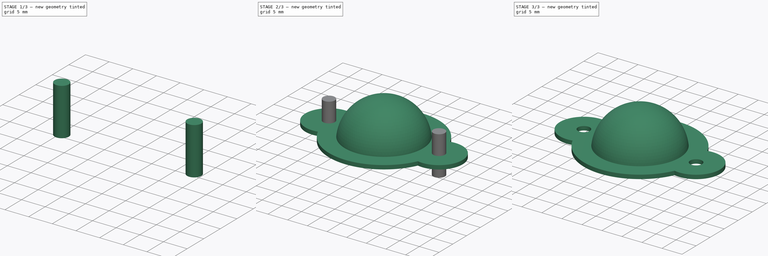
[diagram: build sequence overview — one tinted view per stage of 3, left to right]
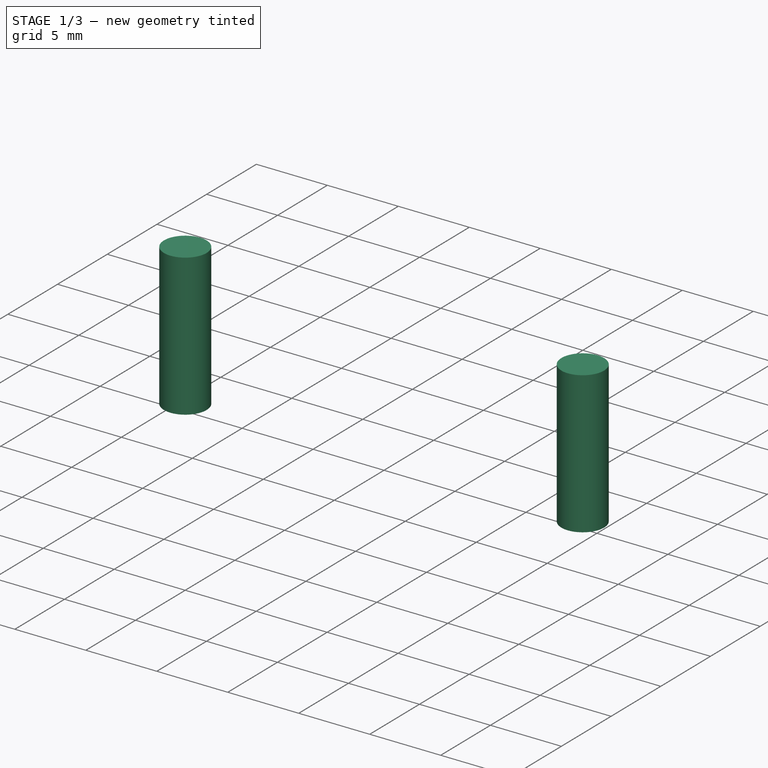
[diagram: stage 1 of 3 — iso view after this stage's code; geometry added in this stage tinted green]
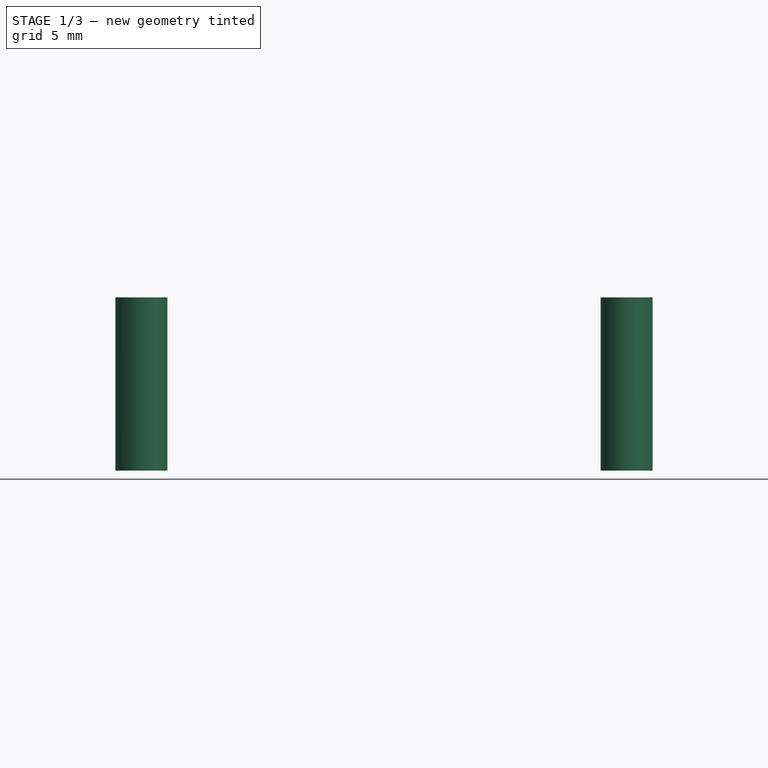
[diagram: stage 1 of 3 — front view after this stage's code; geometry added in this stage tinted green]
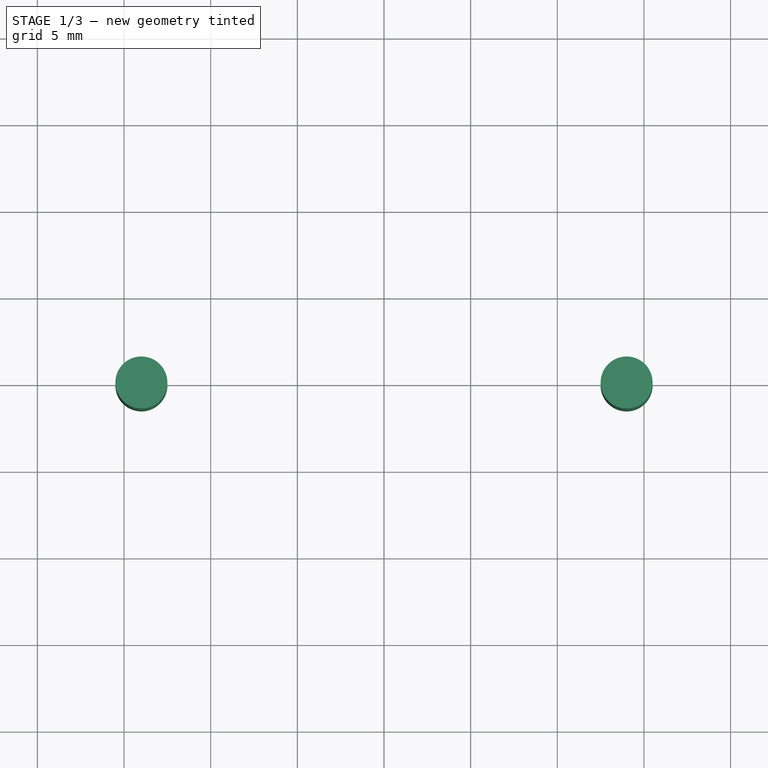
[diagram: stage 1 of 3 — top view after this stage's code; geometry added in this stage tinted green]
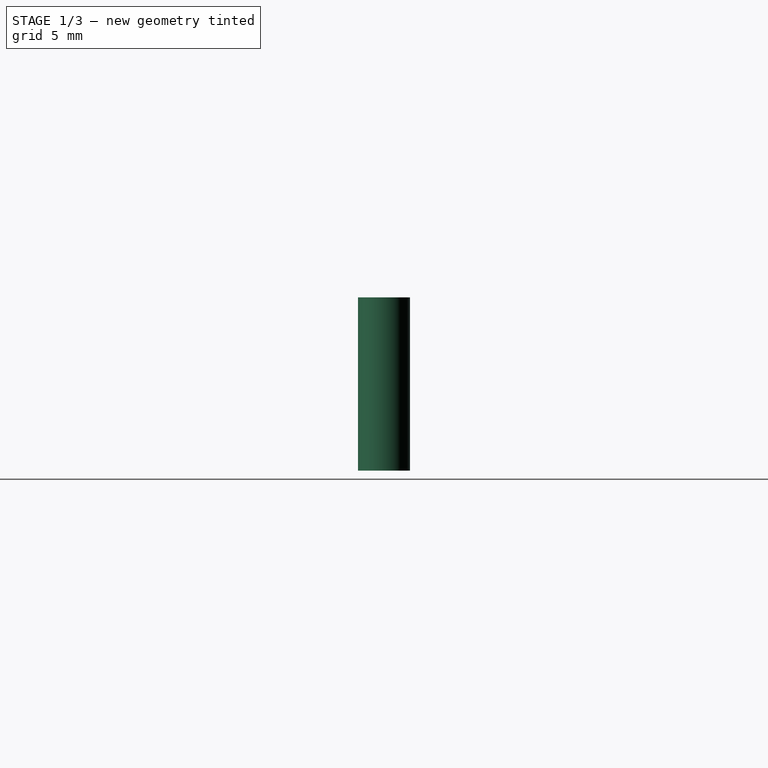
[diagram: stage 1 of 3 — right view after this stage's code; geometry added in this stage tinted green]
FCSTD DOCUMENT  (FreeCAD 0.15R4671 (Git))
Label: EduRoMAACastor
License: CreativeCommons Attribution-ShareAlike
LicenseURL: http://creativecommons.org/licenses/by-sa/4.0/
objects: Part::Cylinder×2, Part::MultiFuse×2, Sketcher::SketchObject×1, PartDesign::Pad×1, Part::Sphere×1, Part::Cut×1
note: 9 computed .brp shape members not serialized (recipe doc carries the construction recipe); baked Part::Feature solids carry a one-line shape summary decoded from their .brp

FEATURE [Part::Cylinder] Cylinder  label="Cilindro1"
  Angle = 360
  Height = 10
  Placement = pos=(-14,0,-4) rot=(0,0,1;0rad)
  Radius = 1.5
FEATURE [Part::Cylinder] Cylinder001  label="Cilindro2"
  Angle = 360
  Height = 10
  Placement = pos=(14,0,-4) rot=(0,0,1;0rad)
  Radius = 1.5
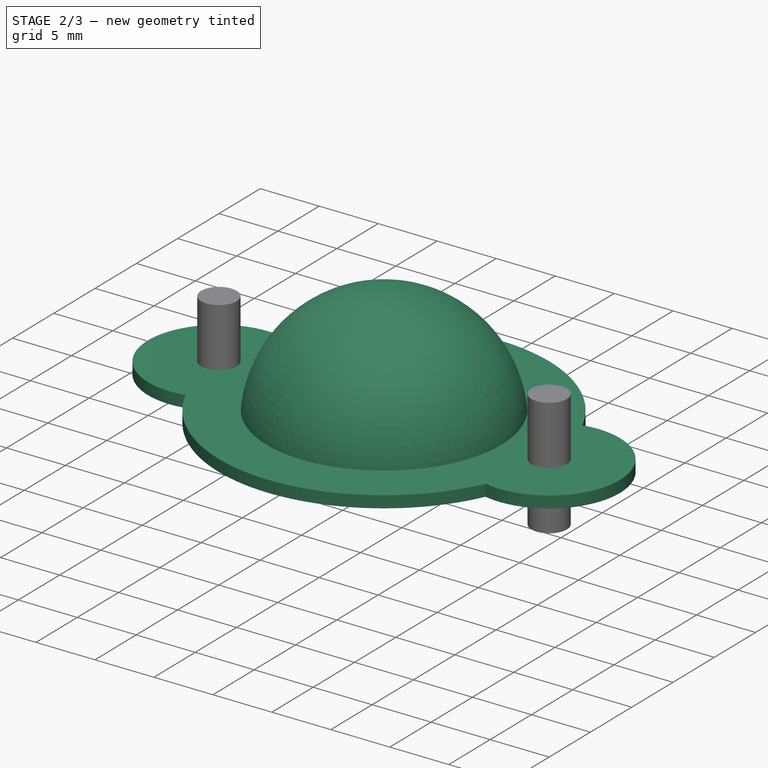
[diagram: stage 2 of 3 — iso view after this stage's code; geometry added in this stage tinted green]
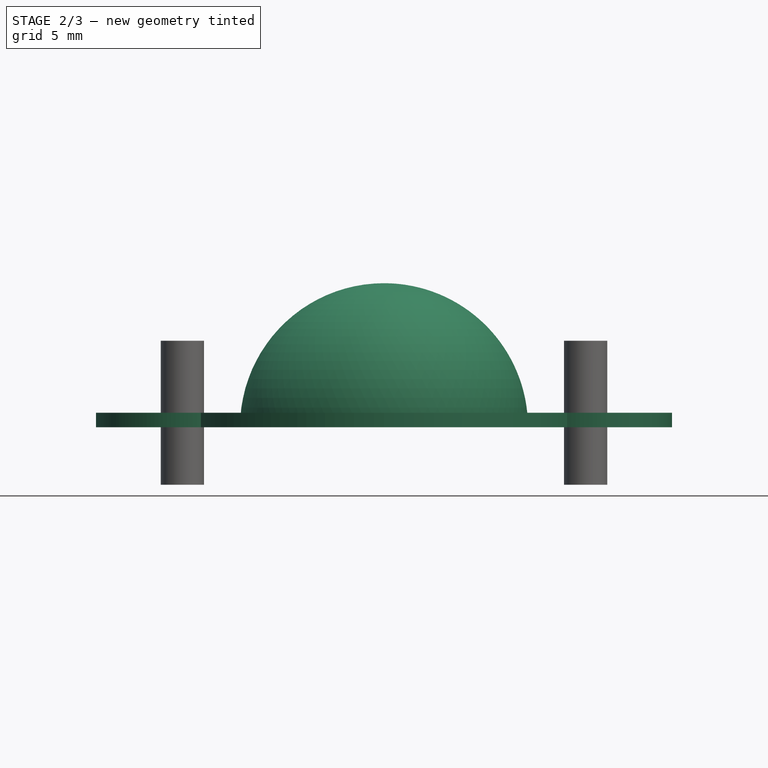
[diagram: stage 2 of 3 — front view after this stage's code; geometry added in this stage tinted green]
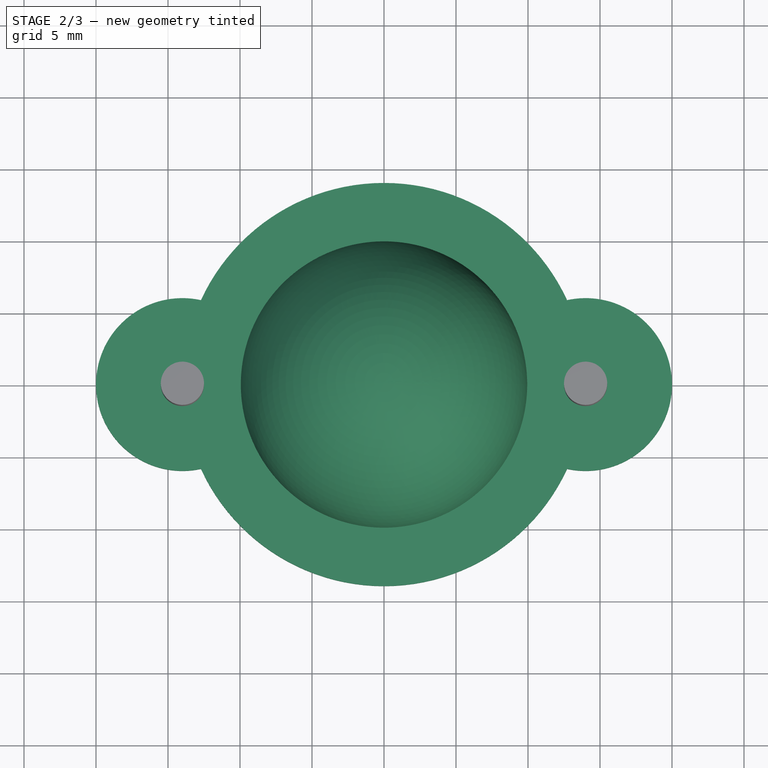
[diagram: stage 2 of 3 — top view after this stage's code; geometry added in this stage tinted green]
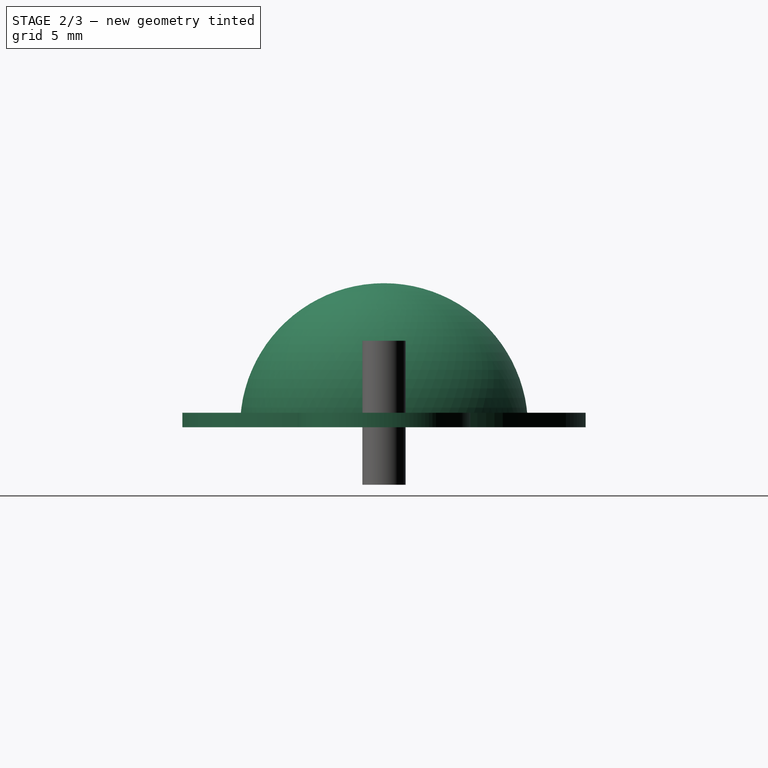
[diagram: stage 2 of 3 — right view after this stage's code; geometry added in this stage tinted green]
FEATURE [Sketcher::SketchObject] Sketch001  label="SoporteSketch"
  sketch-geometry (4):
    g0: ArcOfCircle CenterX=0 CenterY=0 CenterZ=0 NormalX=0 NormalY=0 NormalZ=1 Radius=14 StartAngle=0.431921 EndAngle=2.70967
    g1: ArcOfCircle CenterX=0 CenterY=0 CenterZ=0 NormalX=0 NormalY=0 NormalZ=1 Radius=14 StartAngle=3.57351 EndAngle=5.85126
    g2: ArcOfCircle CenterX=-14 CenterY=0 CenterZ=0 NormalX=0 NormalY=0 NormalZ=1 Radius=6 StartAngle=1.35484 EndAngle=4.92835
    g3: ArcOfCircle CenterX=14 CenterY=1e-12 CenterZ=0 NormalX=0 NormalY=0 NormalZ=1 Radius=6 StartAngle=4.49643 EndAngle=8.06994
  constraints (16):
    c: Coincident(g0,g-1)
    c: Coincident(g0,g1)
    c: Radius(g0) = 14
    c: Symmetric(g0,g1,g-1)
    c: Symmetric(g0,g1,g-1)
    c: PointOnObject(g2,g-1)
    c: Symmetric(g2,g2,g-1)
    c: Symmetric(g3,g3,g-1)
    c: Coincident(g0,g2)
    c: Coincident(g1,g2)
    c: Coincident(g0,g3)
    c: Coincident(g1,g3)
    c: Radius(g3) = 6
    c: Equal(g2,g3)
    c: PointOnObject(g3,g0)
    c: PointOnObject(g2,g0)
FEATURE [PartDesign::Pad] Pad  label="Soporte"
  Length = 1
  Length2 = 100
  Sketch = -> Sketch001
  Type = 0
FEATURE [Part::Sphere] Sphere  label="Esfera"
  Angle1 = 0
  Angle2 = 90
  Angle3 = 360
  Radius = 10
FEATURE [Part::MultiFuse] Fusion001  label="HuecosTornillos"
  Shapes = -> [Cylinder,Cylinder001]
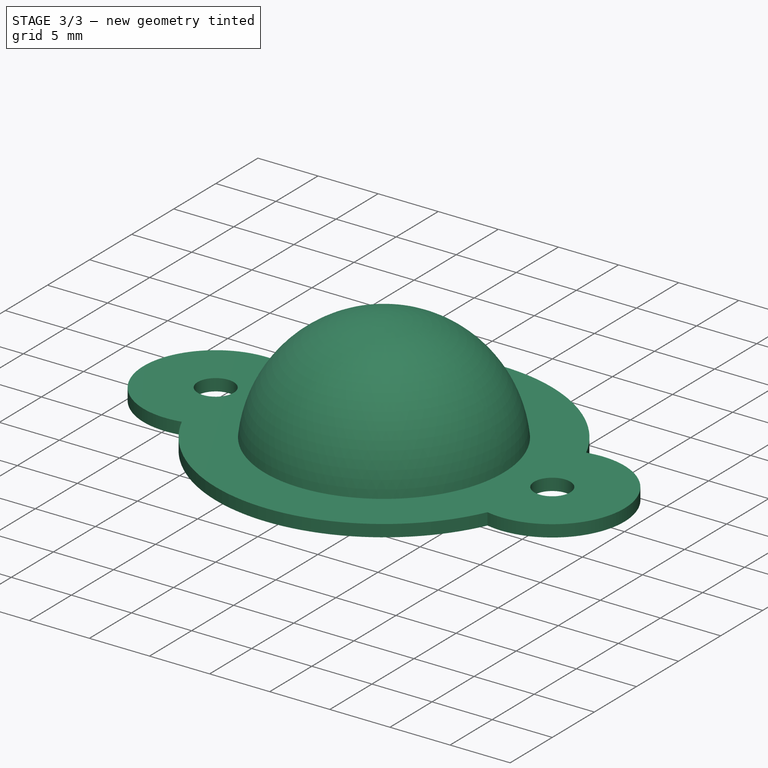
[diagram: stage 3 of 3 — iso view after this stage's code; geometry added in this stage tinted green]
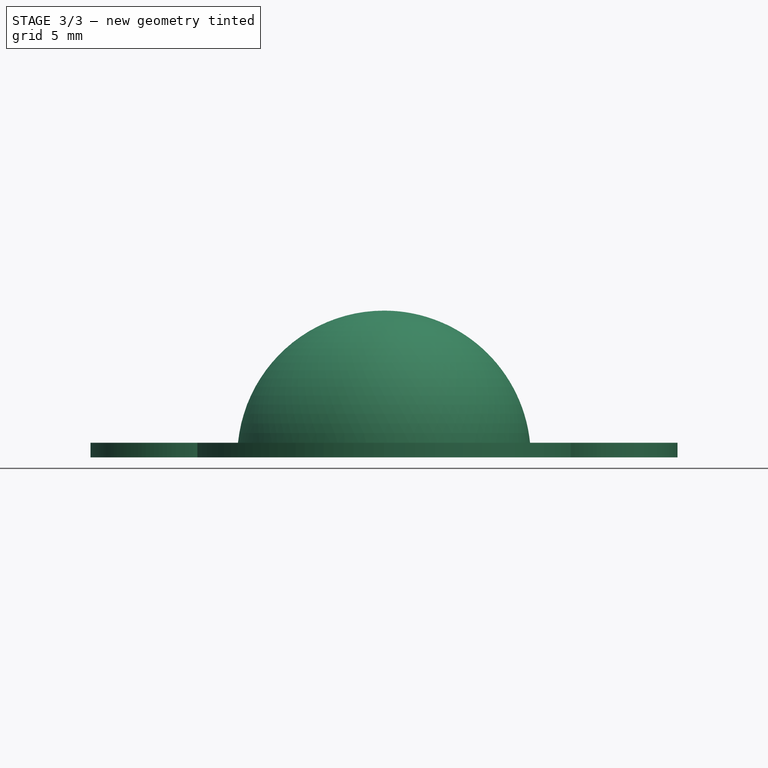
[diagram: stage 3 of 3 — front view after this stage's code; geometry added in this stage tinted green]
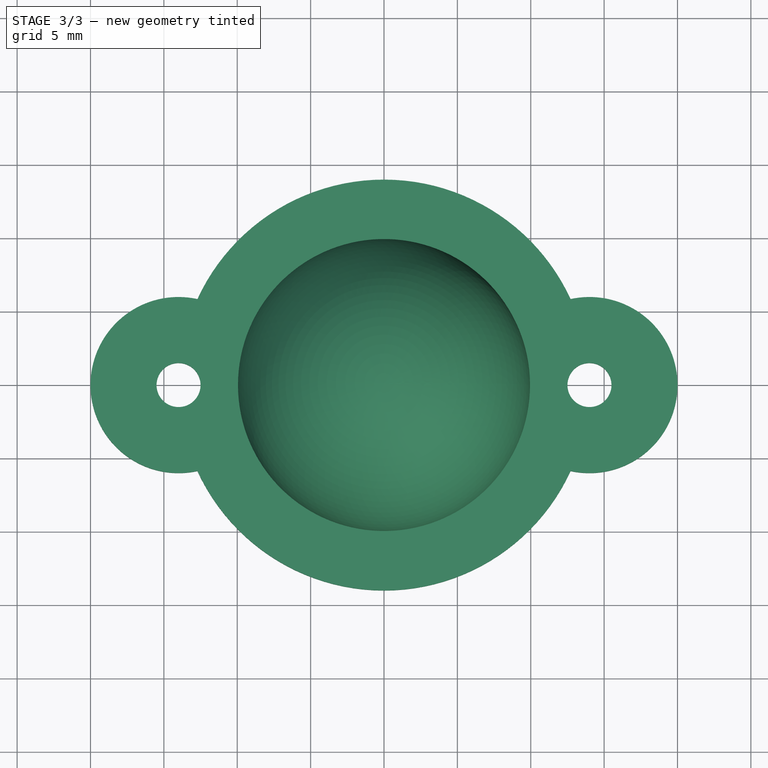
[diagram: stage 3 of 3 — top view after this stage's code; geometry added in this stage tinted green]
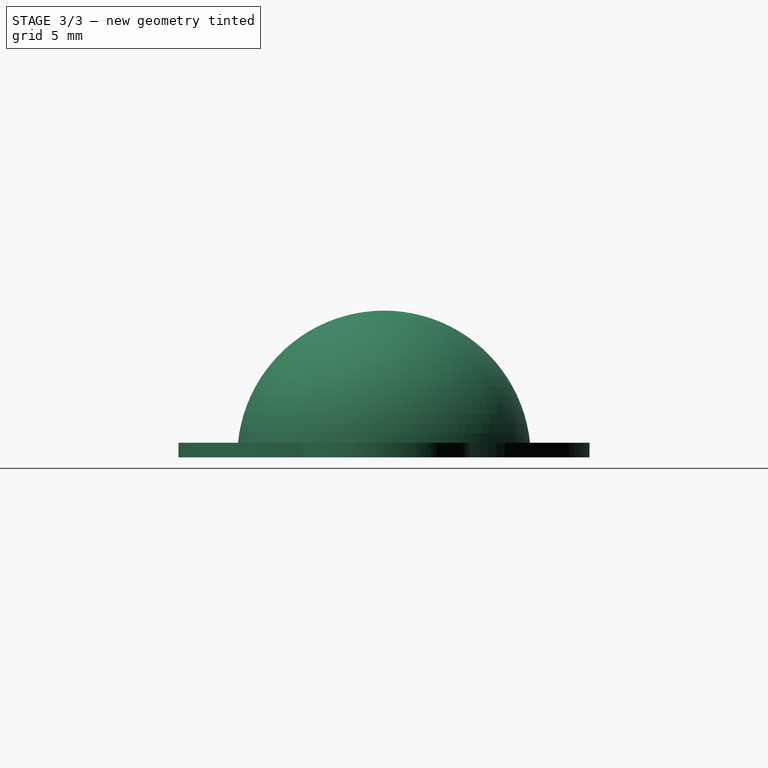
[diagram: stage 3 of 3 — right view after this stage's code; geometry added in this stage tinted green]
FEATURE [Part::MultiFuse] Fusion  label="EsferaSoporte"
  Shapes = -> [Pad,Sphere]
FEATURE [Part::Cut] Cut  label="EsferaSoporteYHuecos"
  Base = -> Fusion
  Tool = -> Fusion001
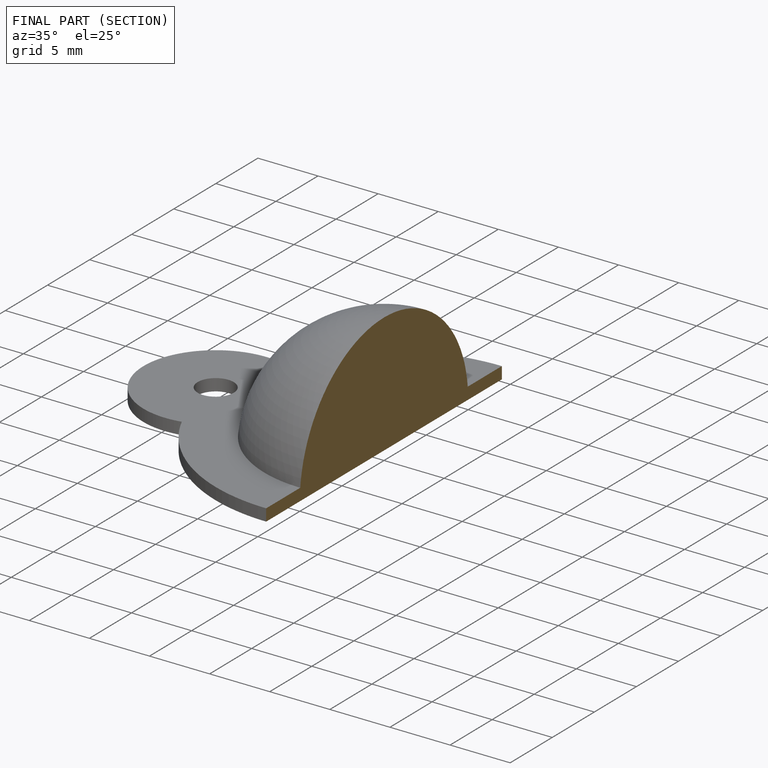
[diagram: finished part — half-section view (interior)]
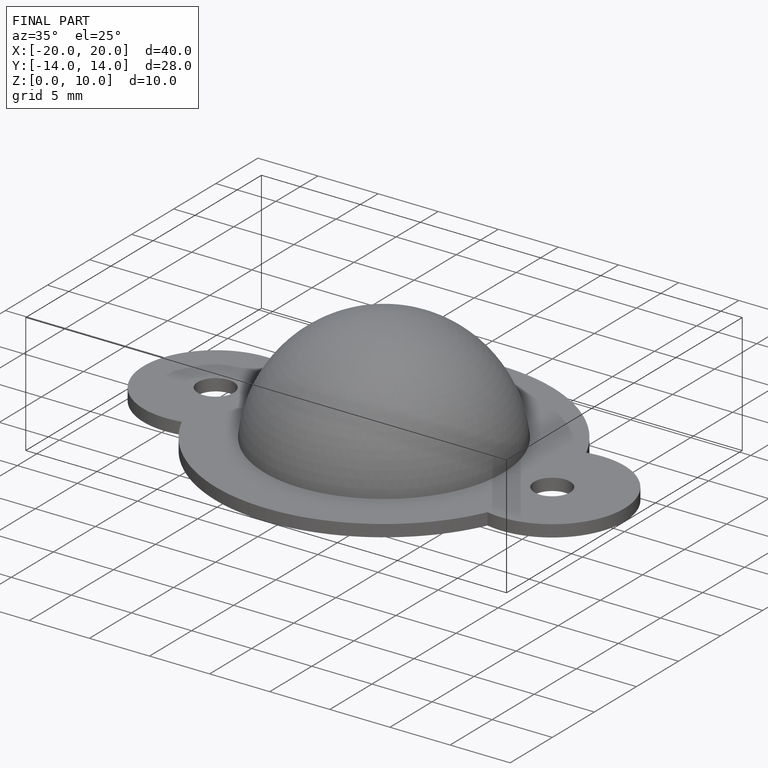
[diagram: finished part — iso view with bounding-box wireframe]
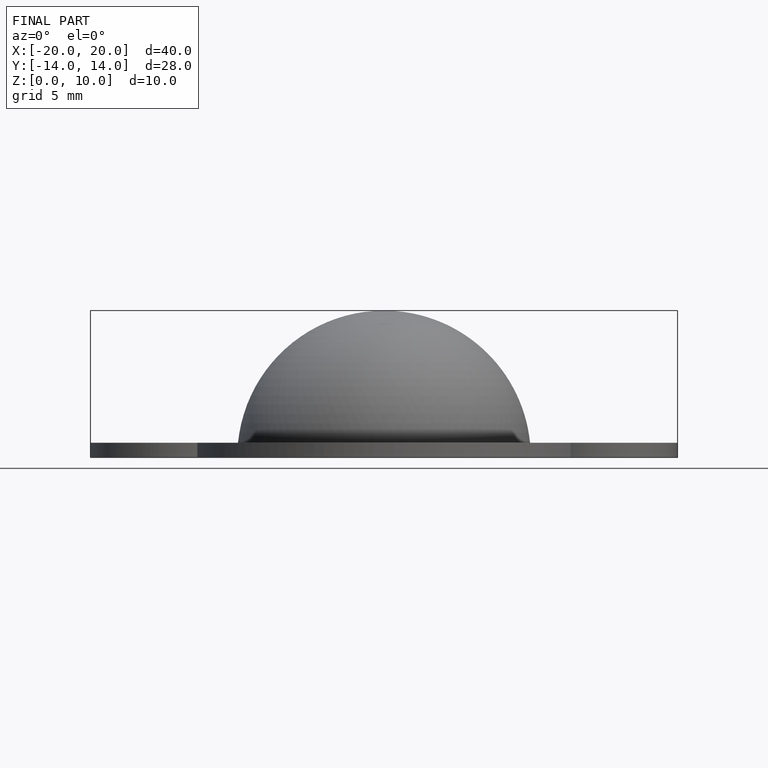
[diagram: finished part — front view with bounding-box wireframe]
